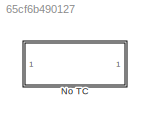
MODEL slx_65cf6b490127
KIND model
CONFIG AbsTol = auto
CONFIG EnableMultiTasking = off
CONFIG FixedStep = auto
CONFIG MaxStep = auto
CONFIG MinStep = auto
CONFIG RelTol = 1e-3
CONFIG SampleTimeConstraint = Unconstrained
CONFIG SolverName = VariableStepAuto
CONFIG StartTime = 0.0
CONFIG StopTime = 10.0
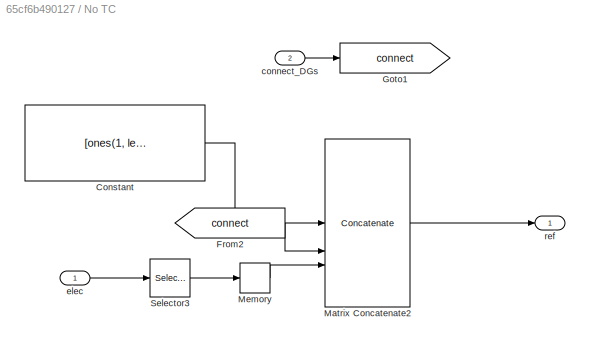
BLOCK [SubSystem] No TC
  NameLocation = top
  VariantControl = No TC
BLOCK [Constant] No TC/Constant
  Value = [ones(1, length(buses_lf)); Ps_lf; v_buses_mod(buses_lf); Qs_lf]
  VectorParams1D = off
BLOCK [From] No TC/From2
  GotoTag = connect
BLOCK [Goto] No TC/Goto1
  GotoTag = connect
BLOCK [Concatenate] No TC/Matrix Concatenate2
  Mode = Multidimensional array
  NumInputs = 3
BLOCK [Memory] No TC/Memory
  InitialCondition = 1
BLOCK [Selector] No TC/Selector3
  IndexOptions = Index vector (dialog),Select all
  Indices = 6,1
  InputPortWidth = 3
  NumberOfDimensions = 2
  OutputSizes = 1,1
BLOCK [Inport] No TC/connect_DGs
  Port = 2
BLOCK [Inport] No TC/elec
BLOCK [Outport] No TC/ref
LINE No TC/Constant:1 -> No TC/Matrix Concatenate2:1
LINE No TC/From2:1 -> No TC/Matrix Concatenate2:2
LINE No TC/Matrix Concatenate2:1 -> No TC/ref:1
LINE No TC/Memory:1 -> No TC/Matrix Concatenate2:3
LINE No TC/Selector3:1 -> No TC/Memory:1
LINE No TC/connect_DGs:1 -> No TC/Goto1:1
LINE No TC/elec:1 -> No TC/Selector3:1
